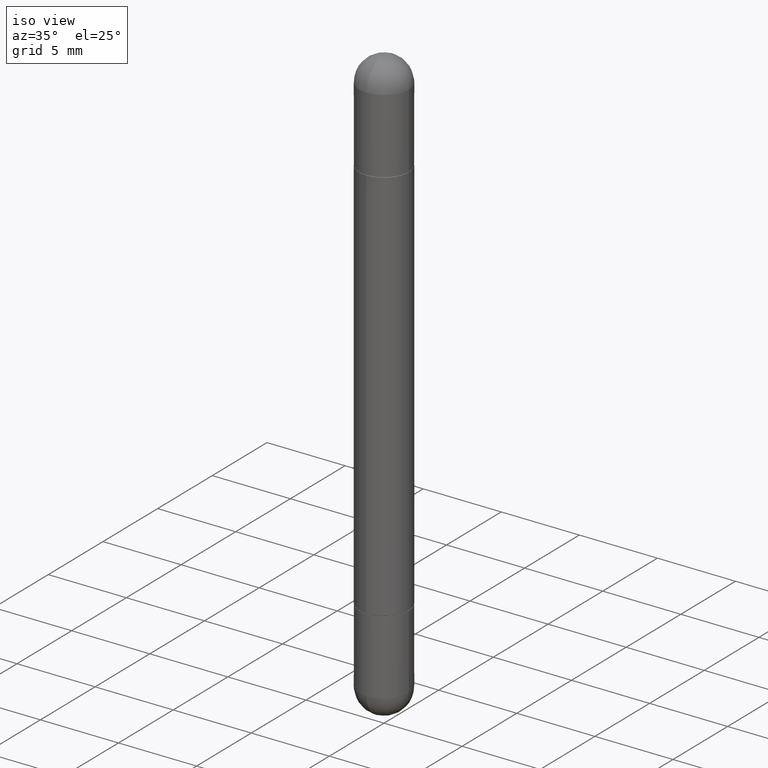
[diagram: clean part render]
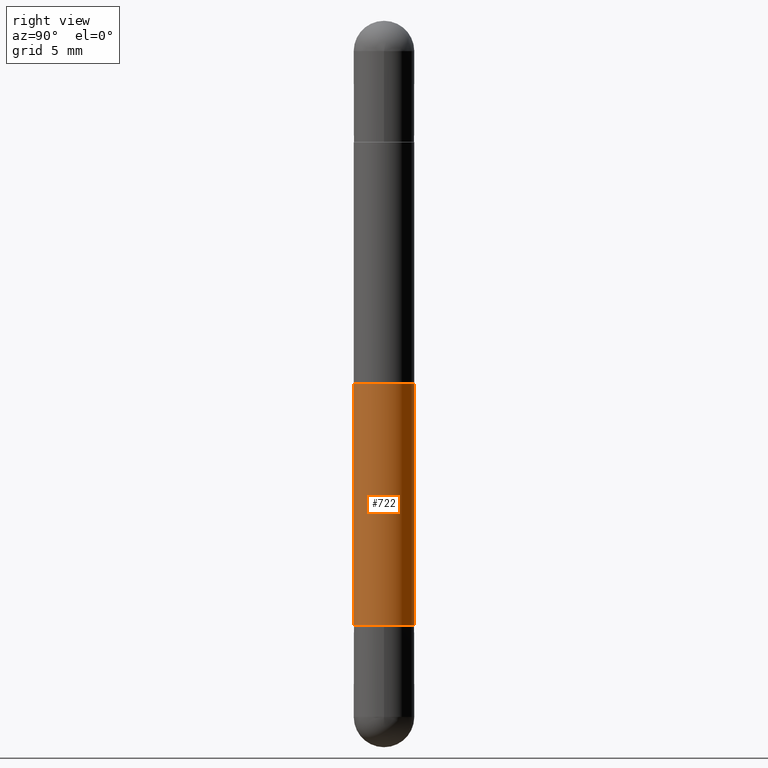
[diagram: tour spotlight — one face highlighted and labeled with its STEP entity id]
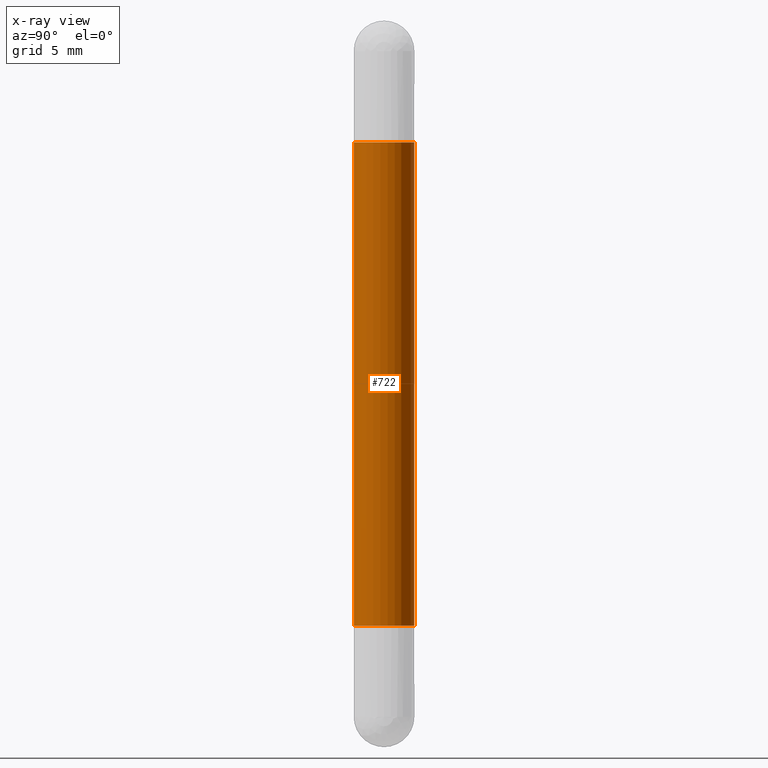
[diagram: x-ray of the same camera — body ghosted, this tour face saturated]
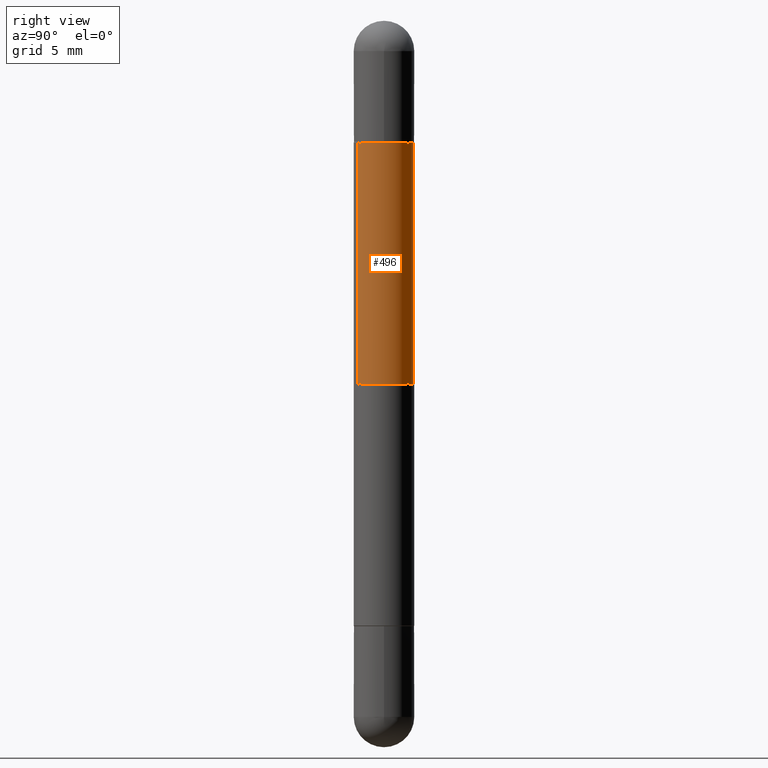
[diagram: tour spotlight — one face highlighted and labeled with its STEP entity id]
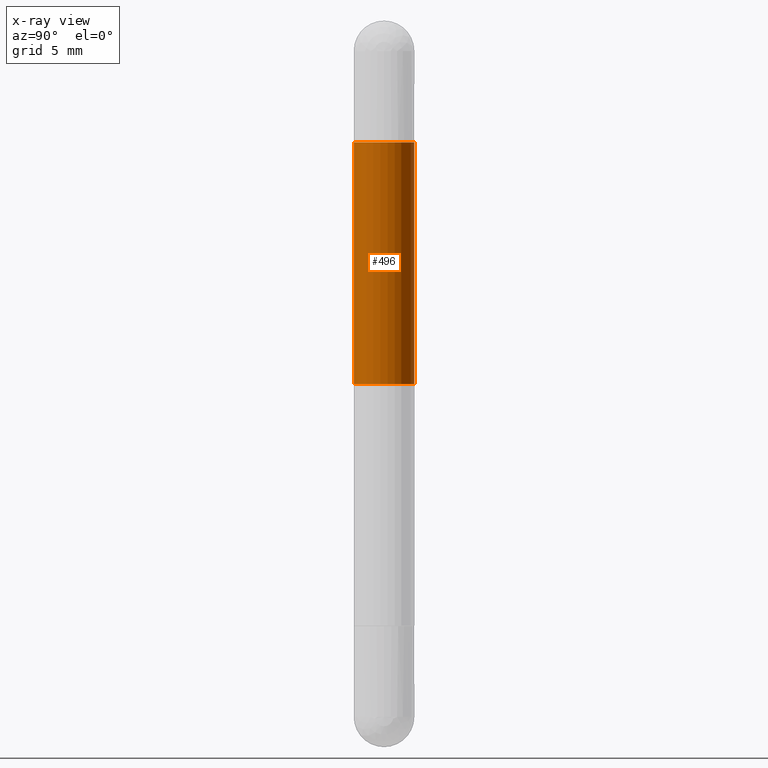
[diagram: x-ray of the same camera — body ghosted, this tour face saturated]
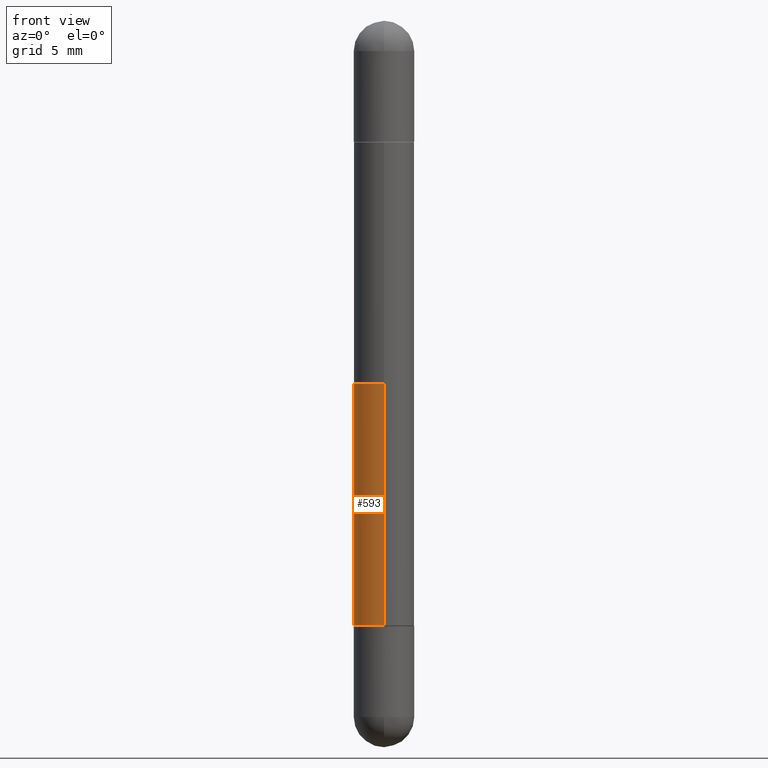
[diagram: tour spotlight — one face highlighted and labeled with its STEP entity id]
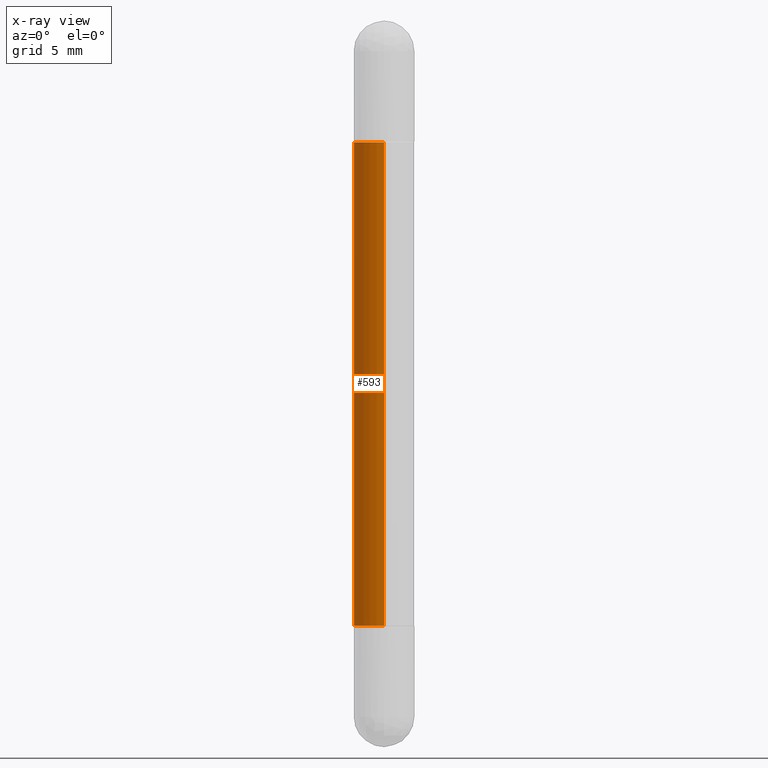
[diagram: x-ray of the same camera — body ghosted, this tour face saturated]
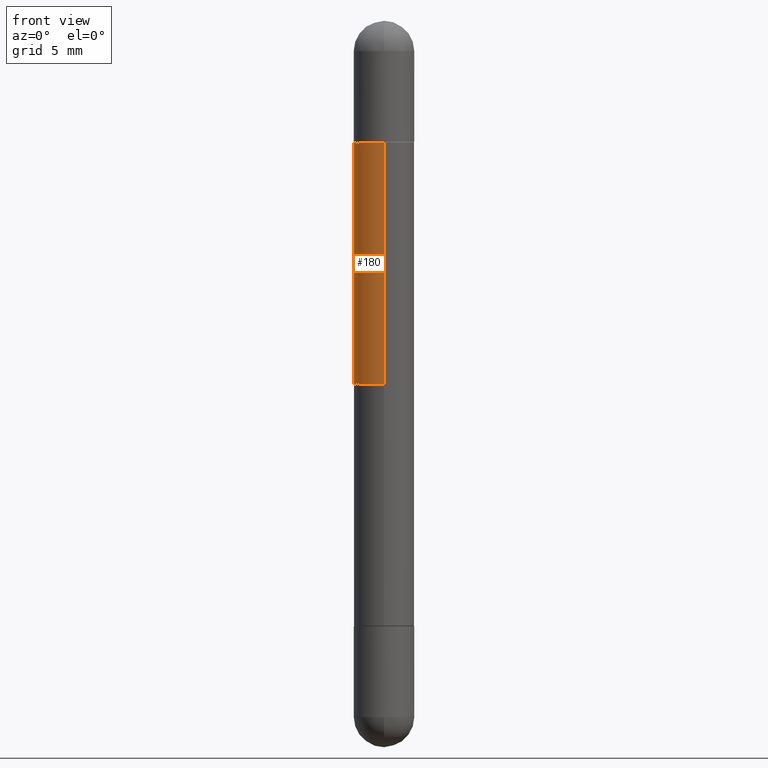
[diagram: tour spotlight — one face highlighted and labeled with its STEP entity id]
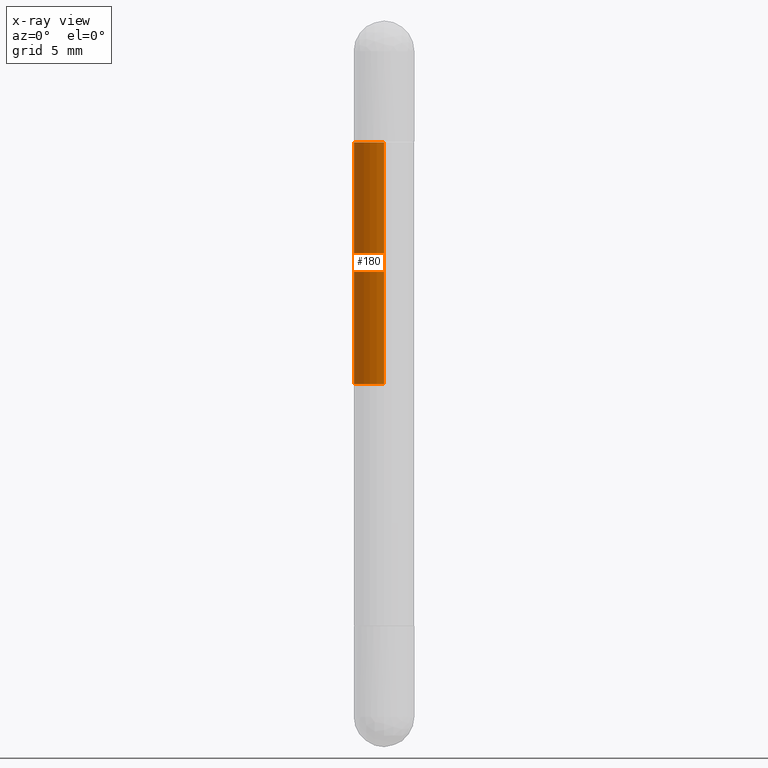
[diagram: x-ray of the same camera — body ghosted, this tour face saturated]
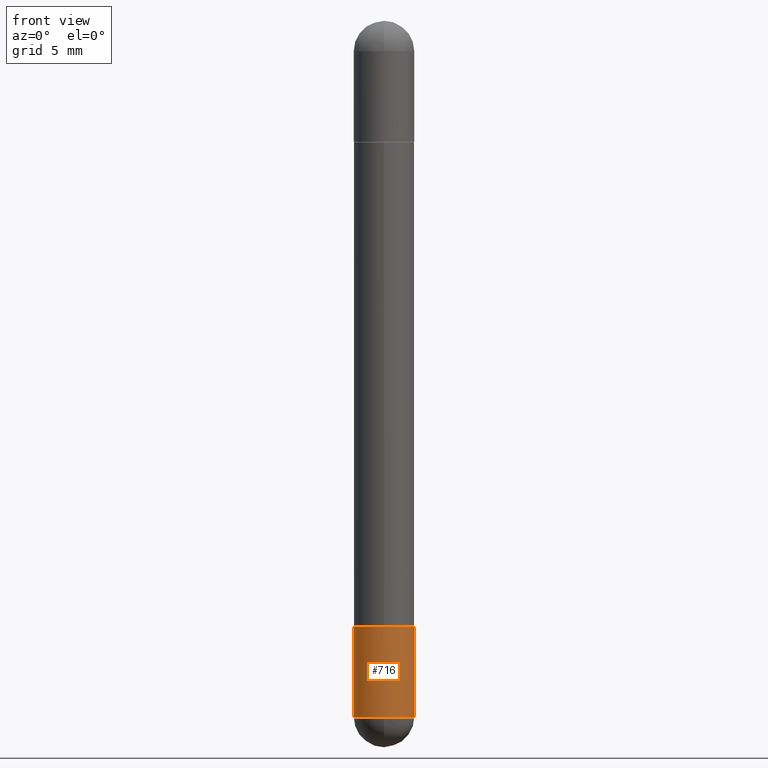
[diagram: tour spotlight — one face highlighted and labeled with its STEP entity id]
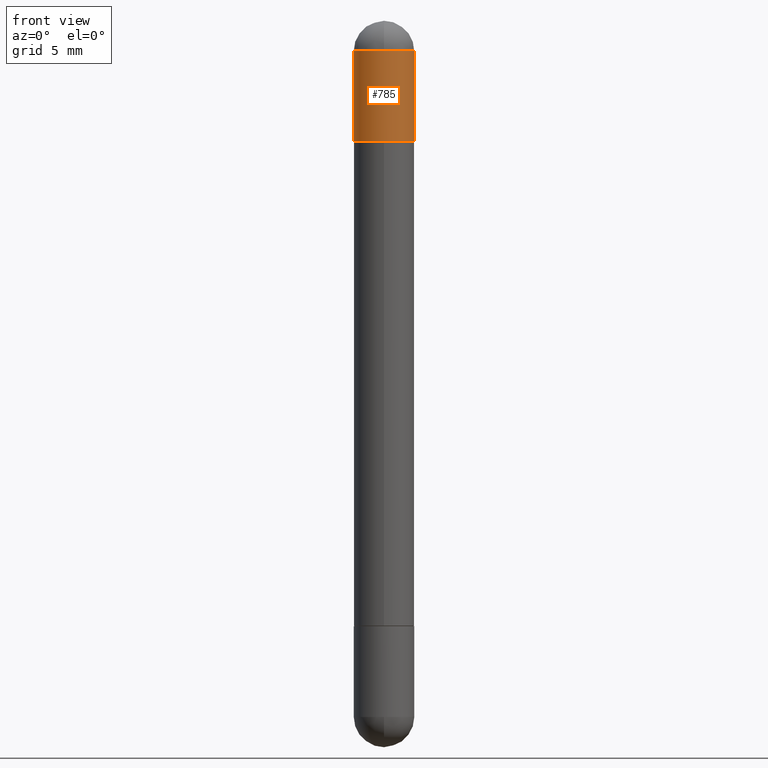
[diagram: tour spotlight — one face highlighted and labeled with its STEP entity id]
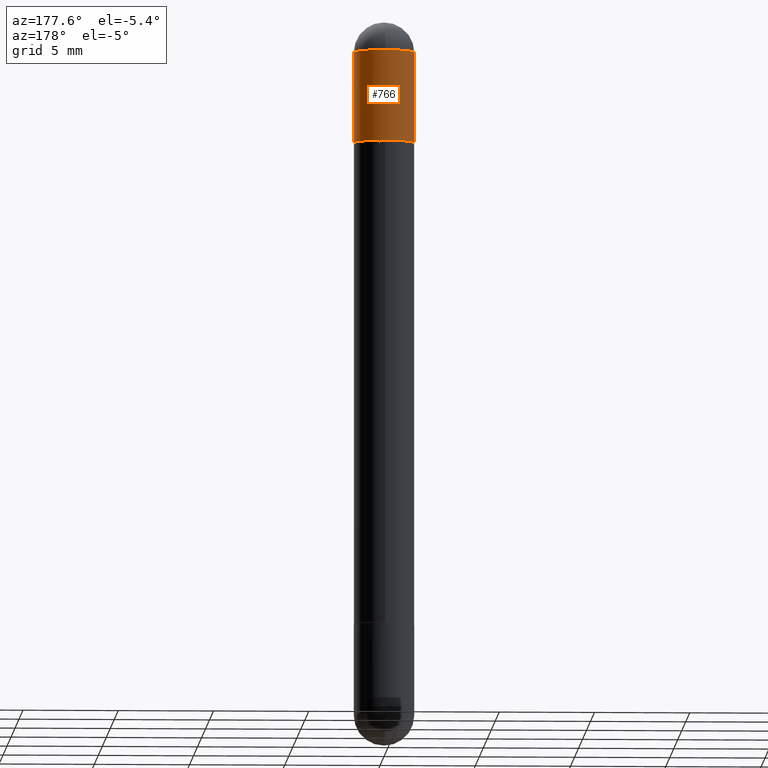
[diagram: tour spotlight — one face highlighted and labeled with its STEP entity id]
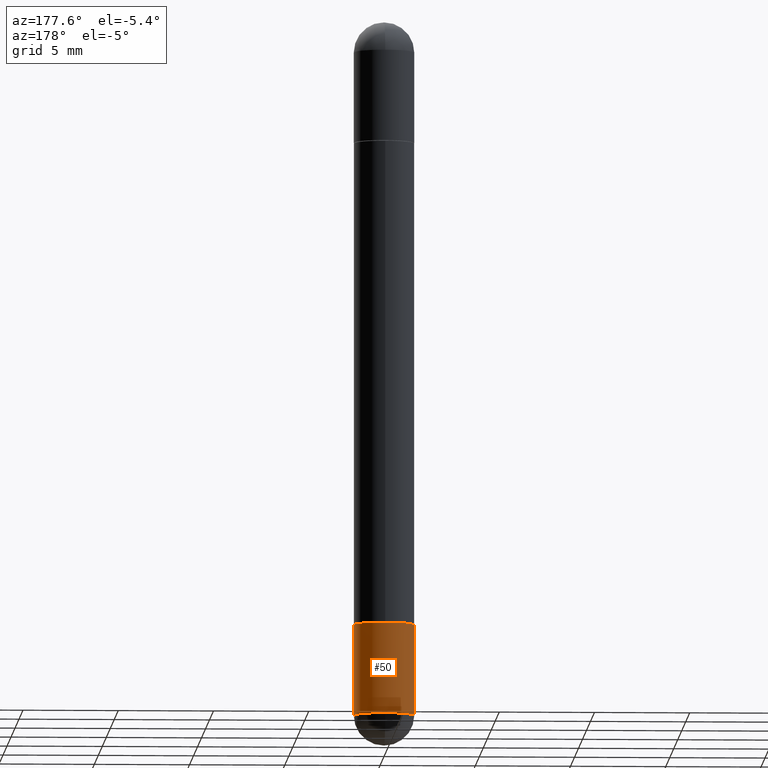
[diagram: tour spotlight — one face highlighted and labeled with its STEP entity id]
A machine part: a face-by-face anatomy tour. The part has 29 B-rep faces; the first image is the clean iso view, then the 8 largest visible faces are spotlighted one at a time (largest first), each with its STEP entity span.

Face 1 — right view, entity #722. An x-ray twin of the same camera follows (body ghosted, this face saturated) — the face is partly hidden behind the body. In plain terms, the highlighted cylindrical surface (edge-blend (fillet) strip) has radius 1.5875 mm, axis along (-0, 0, -1).
Definition (entity closure, byte-faithful):
#18 = VECTOR ( 'NONE', #166, 39.37007874015748143 ) ;
#20 = CARTESIAN_POINT ( 'NONE',  ( 0.000000000000000000, 0.000000000000000000, -1.500000000000000444 ) ) ;
#35 = ORIENTED_EDGE ( 'NONE', *, *, #443, .F. ) ;
#43 = FACE_OUTER_BOUND ( 'NONE', #485, .T. ) ;
#44 = DIRECTION ( 'NONE',  ( 2.436715212064582003E-29, -3.504016983847416079E-15, 1.000000000000000000 ) ) ;
#53 = CARTESIAN_POINT ( 'NONE',  ( 4.287811248607399511E-16, 0.06249999999999582279, -1.249000000000000332 ) ) ;
#86 = DIRECTION ( 'NONE',  ( -2.436715212064582003E-29, 3.504016983847416079E-15, 1.000000000000000000 ) ) ;
#95 = VERTEX_POINT ( 'NONE', #673 ) ;
#107 = VERTEX_POINT ( 'NONE', #784 ) ;
#109 = EDGE_CURVE ( 'NONE', #107, #377, #161, .T. ) ;
#161 = CIRCLE ( 'NONE', #266, 0.06250000000000020817 ) ;
#166 = DIRECTION ( 'NONE',  ( -2.436715212064582283E-29, 3.504016983847416079E-15, -1.000000000000000000 ) ) ;
#189 = DIRECTION ( 'NONE',  ( -6.982962677686265922E-15, -1.000000000000000000, 4.370956789862806950E-15 ) ) ;
#266 = AXIS2_PLACEMENT_3D ( 'NONE', #725, #44, #550 ) ;
#268 = AXIS2_PLACEMENT_3D ( 'NONE', #20, #447, #707 ) ;
#301 = CARTESIAN_POINT ( 'NONE',  ( 4.287811248607524250E-16, 0.06249999999999581585, -0.2510000000000002229 ) ) ;
#314 = CARTESIAN_POINT ( 'NONE',  ( 3.043457299868662493E-29, -4.376517212825422160E-15, -1.248999999999999888 ) ) ;
#332 = DIRECTION ( 'NONE',  ( -2.436715212064582283E-29, 3.504016983847416079E-15, -1.000000000000000000 ) ) ;
#374 = VERTEX_POINT ( 'NONE', #53 ) ;
#377 = VERTEX_POINT ( 'NONE', #301 ) ;
#378 = LINE ( 'NONE', #638, #18 ) ;
#409 = EDGE_CURVE ( 'NONE', #95, #374, #626, .T. ) ;
#410 = AXIS2_PLACEMENT_3D ( 'NONE', #314, #86, #189 ) ;
#420 = ORIENTED_EDGE ( 'NONE', *, *, #409, .T. ) ;
#426 = ORIENTED_EDGE ( 'NONE', *, *, #109, .F. ) ;
#443 = EDGE_CURVE ( 'NONE', #377, #374, #648, .T. ) ;
#447 = DIRECTION ( 'NONE',  ( -2.436715212064582003E-29, 3.504016983847416079E-15, -1.000000000000000000 ) ) ;
#485 = EDGE_LOOP ( 'NONE', ( #35, #426, #721, #420 ) ) ;
#511 = CARTESIAN_POINT ( 'NONE',  ( 4.287811248607214129E-16, 0.06250000000000011102, -1.500000000000000222 ) ) ;
#539 = EDGE_CURVE ( 'NONE', #107, #95, #378, .T. ) ;
#549 = CYLINDRICAL_SURFACE ( 'NONE', #268, 0.06250000000000011102 ) ;
#550 = DIRECTION ( 'NONE',  ( -6.982962677686265922E-15, -1.000000000000000000, -3.278217592397104818E-15 ) ) ;
#626 = CIRCLE ( 'NONE', #410, 0.06250000000000020817 ) ;
#638 = CARTESIAN_POINT ( 'NONE',  ( -4.364351673553924090E-16, -0.06250000000000011102, -1.500000000000000666 ) ) ;
#648 = LINE ( 'NONE', #511, #783 ) ;
#673 = CARTESIAN_POINT ( 'NONE',  ( -4.364351673553626295E-16, -0.06250000000000457967, -1.248999999999999666 ) ) ;
#707 = DIRECTION ( 'NONE',  ( -6.982962677686265922E-15, -1.000000000000000000, -4.370956789862813261E-15 ) ) ;
#721 = ORIENTED_EDGE ( 'NONE', *, *, #539, .T. ) ;
#722 = ADVANCED_FACE ( 'NONE', ( #43 ), #549, .T. ) ;
#725 = CARTESIAN_POINT ( 'NONE',  ( 3.043457299868662493E-29, -4.376517212825422160E-15, -0.2510000000000003895 ) ) ;
#783 = VECTOR ( 'NONE', #332, 39.37007874015748143 ) ;
#784 = CARTESIAN_POINT ( 'NONE',  ( -4.364351673553627281E-16, -0.06250000000000459355, -0.2510000000000006115 ) ) ;

Face 2 — right view, entity #496. An x-ray twin of the same camera follows (body ghosted, this face saturated) — the face is partly hidden behind the body. In plain terms, the highlighted cylindrical surface (edge-blend (fillet) strip) has radius 1.5875 mm, axis along (-0, 0, -1).
Definition (entity closure, byte-faithful):
#2 = VERTEX_POINT ( 'NONE', #461 ) ;
#6 = FACE_OUTER_BOUND ( 'NONE', #518, .T. ) ;
#42 = ORIENTED_EDGE ( 'NONE', *, *, #157, .F. ) ;
#63 = LINE ( 'NONE', #747, #97 ) ;
#97 = VECTOR ( 'NONE', #554, 39.37007874015748143 ) ;
#111 = ORIENTED_EDGE ( 'NONE', *, *, #250, .F. ) ;
#125 = VECTOR ( 'NONE', #737, 39.37007874015748143 ) ;
#157 = EDGE_CURVE ( 'NONE', #816, #808, #597, .T. ) ;
#208 = CARTESIAN_POINT ( 'NONE',  ( -4.364351673553924090E-16, -0.06250000000000011102, -1.500000000000000666 ) ) ;
#227 = VERTEX_POINT ( 'NONE', #693 ) ;
#235 = CARTESIAN_POINT ( 'NONE',  ( 3.043457299868662493E-29, -4.376517212825422160E-15, -0.2510000000000003895 ) ) ;
#248 = DIRECTION ( 'NONE',  ( -1.000000000000000000, 0.000000000000000000, 0.000000000000000000 ) ) ;
#250 = EDGE_CURVE ( 'NONE', #808, #2, #63, .T. ) ;
#348 = EDGE_CURVE ( 'NONE', #2, #227, #569, .T. ) ;
#351 = LINE ( 'NONE', #208, #125 ) ;
#373 = CARTESIAN_POINT ( 'NONE',  ( -4.364351673553627281E-16, -0.06250000000000459355, -0.2510000000000006115 ) ) ;
#461 = CARTESIAN_POINT ( 'NONE',  ( 4.287811248607517347E-16, 0.06249999999999747424, -0.7500000000000002220 ) ) ;
#496 = ADVANCED_FACE ( 'NONE', ( #6 ), #713, .T. ) ;
#503 = AXIS2_PLACEMENT_3D ( 'NONE', #507, #772, #588 ) ;
#507 = CARTESIAN_POINT ( 'NONE',  ( 0.000000000000000000, 0.000000000000000000, -1.500000000000000444 ) ) ;
#518 = EDGE_LOOP ( 'NONE', ( #111, #42, #562, #741 ) ) ;
#537 = DIRECTION ( 'NONE',  ( -6.982962677686265922E-15, -1.000000000000000000, -3.278217592397104818E-15 ) ) ;
#554 = DIRECTION ( 'NONE',  ( -2.436715212064582283E-29, 3.504016983847416079E-15, -1.000000000000000000 ) ) ;
#562 = ORIENTED_EDGE ( 'NONE', *, *, #695, .T. ) ;
#569 = CIRCLE ( 'NONE', #691, 0.06250000000000011102 ) ;
#588 = DIRECTION ( 'NONE',  ( -6.982962677686265922E-15, -1.000000000000000000, -4.370956789862813261E-15 ) ) ;
#597 = CIRCLE ( 'NONE', #768, 0.06250000000000020817 ) ;
#676 = DIRECTION ( 'NONE',  ( 2.436715212064582003E-29, -3.504016983847416079E-15, 1.000000000000000000 ) ) ;
#678 = CARTESIAN_POINT ( 'NONE',  ( 1.827536409048436853E-29, -2.628012737885562651E-15, -0.7500000000000002220 ) ) ;
#686 = DIRECTION ( 'NONE',  ( -0.000000000000000000, -0.000000000000000000, -1.000000000000000000 ) ) ;
#691 = AXIS2_PLACEMENT_3D ( 'NONE', #678, #686, #248 ) ;
#693 = CARTESIAN_POINT ( 'NONE',  ( -4.364351673553680036E-16, -0.06250000000000273392, -0.7500000000000002220 ) ) ;
#695 = EDGE_CURVE ( 'NONE', #816, #227, #351, .T. ) ;
#713 = CYLINDRICAL_SURFACE ( 'NONE', #503, 0.06250000000000011102 ) ;
#737 = DIRECTION ( 'NONE',  ( -2.436715212064582283E-29, 3.504016983847416079E-15, -1.000000000000000000 ) ) ;
#741 = ORIENTED_EDGE ( 'NONE', *, *, #348, .F. ) ;
#747 = CARTESIAN_POINT ( 'NONE',  ( 4.287811248607214129E-16, 0.06250000000000011102, -1.500000000000000222 ) ) ;
#765 = CARTESIAN_POINT ( 'NONE',  ( 4.287811248607524250E-16, 0.06249999999999581585, -0.2510000000000002229 ) ) ;
#768 = AXIS2_PLACEMENT_3D ( 'NONE', #235, #676, #537 ) ;
#772 = DIRECTION ( 'NONE',  ( -2.436715212064582003E-29, 3.504016983847416079E-15, -1.000000000000000000 ) ) ;
#808 = VERTEX_POINT ( 'NONE', #765 ) ;
#816 = VERTEX_POINT ( 'NONE', #373 ) ;

Face 3 — front view, entity #593. An x-ray twin of the same camera follows (body ghosted, this face saturated) — the face is partly hidden behind the body. In plain terms, the highlighted cylindrical surface (edge-blend (fillet) strip) has radius 1.5875 mm, axis along (-0, 0, -1).
Definition (entity closure, byte-faithful):
#18 = VECTOR ( 'NONE', #166, 39.37007874015748143 ) ;
#29 = CIRCLE ( 'NONE', #228, 0.06250000000000020817 ) ;
#53 = CARTESIAN_POINT ( 'NONE',  ( 4.287811248607399511E-16, 0.06249999999999582279, -1.249000000000000332 ) ) ;
#93 = CARTESIAN_POINT ( 'NONE',  ( 0.000000000000000000, 0.000000000000000000, -1.500000000000000444 ) ) ;
#95 = VERTEX_POINT ( 'NONE', #673 ) ;
#106 = DIRECTION ( 'NONE',  ( -2.436715212064582003E-29, 3.504016983847416079E-15, 1.000000000000000000 ) ) ;
#107 = VERTEX_POINT ( 'NONE', #784 ) ;
#110 = DIRECTION ( 'NONE',  ( -6.982962677686265922E-15, -1.000000000000000000, -3.278217592397104818E-15 ) ) ;
#129 = EDGE_CURVE ( 'NONE', #374, #95, #29, .T. ) ;
#166 = DIRECTION ( 'NONE',  ( -2.436715212064582283E-29, 3.504016983847416079E-15, -1.000000000000000000 ) ) ;
#203 = EDGE_CURVE ( 'NONE', #377, #107, #733, .T. ) ;
#228 = AXIS2_PLACEMENT_3D ( 'NONE', #542, #106, #607 ) ;
#279 = ORIENTED_EDGE ( 'NONE', *, *, #203, .F. ) ;
#301 = CARTESIAN_POINT ( 'NONE',  ( 4.287811248607524250E-16, 0.06249999999999581585, -0.2510000000000002229 ) ) ;
#332 = DIRECTION ( 'NONE',  ( -2.436715212064582283E-29, 3.504016983847416079E-15, -1.000000000000000000 ) ) ;
#336 = FACE_OUTER_BOUND ( 'NONE', #635, .T. ) ;
#374 = VERTEX_POINT ( 'NONE', #53 ) ;
#377 = VERTEX_POINT ( 'NONE', #301 ) ;
#378 = LINE ( 'NONE', #638, #18 ) ;
#381 = AXIS2_PLACEMENT_3D ( 'NONE', #93, #605, #730 ) ;
#393 = AXIS2_PLACEMENT_3D ( 'NONE', #732, #398, #110 ) ;
#398 = DIRECTION ( 'NONE',  ( 2.436715212064582003E-29, -3.504016983847416079E-15, 1.000000000000000000 ) ) ;
#415 = CYLINDRICAL_SURFACE ( 'NONE', #381, 0.06250000000000011102 ) ;
#443 = EDGE_CURVE ( 'NONE', #377, #374, #648, .T. ) ;
#511 = CARTESIAN_POINT ( 'NONE',  ( 4.287811248607214129E-16, 0.06250000000000011102, -1.500000000000000222 ) ) ;
#539 = EDGE_CURVE ( 'NONE', #107, #95, #378, .T. ) ;
#542 = CARTESIAN_POINT ( 'NONE',  ( 3.043457299868662493E-29, -4.376517212825422160E-15, -1.248999999999999888 ) ) ;
#556 = ORIENTED_EDGE ( 'NONE', *, *, #539, .F. ) ;
#593 = ADVANCED_FACE ( 'NONE', ( #336 ), #415, .T. ) ;
#605 = DIRECTION ( 'NONE',  ( -2.436715212064582003E-29, 3.504016983847416079E-15, -1.000000000000000000 ) ) ;
#607 = DIRECTION ( 'NONE',  ( -6.982962677686265922E-15, -1.000000000000000000, 4.370956789862806950E-15 ) ) ;
#635 = EDGE_LOOP ( 'NONE', ( #279, #814, #702, #556 ) ) ;
#638 = CARTESIAN_POINT ( 'NONE',  ( -4.364351673553924090E-16, -0.06250000000000011102, -1.500000000000000666 ) ) ;
#648 = LINE ( 'NONE', #511, #783 ) ;
#673 = CARTESIAN_POINT ( 'NONE',  ( -4.364351673553626295E-16, -0.06250000000000457967, -1.248999999999999666 ) ) ;
#702 = ORIENTED_EDGE ( 'NONE', *, *, #129, .T. ) ;
#730 = DIRECTION ( 'NONE',  ( -6.982962677686265922E-15, -1.000000000000000000, -4.370956789862813261E-15 ) ) ;
#732 = CARTESIAN_POINT ( 'NONE',  ( 3.043457299868662493E-29, -4.376517212825422160E-15, -0.2510000000000003895 ) ) ;
#733 = CIRCLE ( 'NONE', #393, 0.06250000000000020817 ) ;
#783 = VECTOR ( 'NONE', #332, 39.37007874015748143 ) ;
#784 = CARTESIAN_POINT ( 'NONE',  ( -4.364351673553627281E-16, -0.06250000000000459355, -0.2510000000000006115 ) ) ;
#814 = ORIENTED_EDGE ( 'NONE', *, *, #443, .T. ) ;

Face 4 — front view, entity #180. An x-ray twin of the same camera follows (body ghosted, this face saturated) — the face is partly hidden behind the body. In plain terms, the highlighted cylindrical surface (edge-blend (fillet) strip) has radius 1.5875 mm, axis along (-0, 0, -1).
Definition (entity closure, byte-faithful):
#2 = VERTEX_POINT ( 'NONE', #461 ) ;
#63 = LINE ( 'NONE', #747, #97 ) ;
#70 = EDGE_CURVE ( 'NONE', #808, #816, #316, .T. ) ;
#85 = CIRCLE ( 'NONE', #114, 0.06250000000000011102 ) ;
#97 = VECTOR ( 'NONE', #554, 39.37007874015748143 ) ;
#114 = AXIS2_PLACEMENT_3D ( 'NONE', #522, #777, #479 ) ;
#125 = VECTOR ( 'NONE', #737, 39.37007874015748143 ) ;
#160 = ORIENTED_EDGE ( 'NONE', *, *, #70, .F. ) ;
#180 = ADVANCED_FACE ( 'NONE', ( #484 ), #603, .T. ) ;
#208 = CARTESIAN_POINT ( 'NONE',  ( -4.364351673553924090E-16, -0.06250000000000011102, -1.500000000000000666 ) ) ;
#227 = VERTEX_POINT ( 'NONE', #693 ) ;
#232 = DIRECTION ( 'NONE',  ( -2.436715212064582003E-29, 3.504016983847416079E-15, -1.000000000000000000 ) ) ;
#250 = EDGE_CURVE ( 'NONE', #808, #2, #63, .T. ) ;
#280 = AXIS2_PLACEMENT_3D ( 'NONE', #650, #528, #612 ) ;
#307 = ORIENTED_EDGE ( 'NONE', *, *, #250, .T. ) ;
#316 = CIRCLE ( 'NONE', #280, 0.06250000000000020817 ) ;
#334 = EDGE_LOOP ( 'NONE', ( #160, #307, #674, #618 ) ) ;
#351 = LINE ( 'NONE', #208, #125 ) ;
#373 = CARTESIAN_POINT ( 'NONE',  ( -4.364351673553627281E-16, -0.06250000000000459355, -0.2510000000000006115 ) ) ;
#461 = CARTESIAN_POINT ( 'NONE',  ( 4.287811248607517347E-16, 0.06249999999999747424, -0.7500000000000002220 ) ) ;
#467 = CARTESIAN_POINT ( 'NONE',  ( 0.000000000000000000, 0.000000000000000000, -1.500000000000000444 ) ) ;
#479 = DIRECTION ( 'NONE',  ( -1.000000000000000000, 0.000000000000000000, 0.000000000000000000 ) ) ;
#480 = DIRECTION ( 'NONE',  ( -6.982962677686265922E-15, -1.000000000000000000, -4.370956789862813261E-15 ) ) ;
#484 = FACE_OUTER_BOUND ( 'NONE', #334, .T. ) ;
#522 = CARTESIAN_POINT ( 'NONE',  ( 1.827536409048436853E-29, -2.628012737885562651E-15, -0.7500000000000002220 ) ) ;
#528 = DIRECTION ( 'NONE',  ( 2.436715212064582003E-29, -3.504016983847416079E-15, 1.000000000000000000 ) ) ;
#554 = DIRECTION ( 'NONE',  ( -2.436715212064582283E-29, 3.504016983847416079E-15, -1.000000000000000000 ) ) ;
#603 = CYLINDRICAL_SURFACE ( 'NONE', #800, 0.06250000000000011102 ) ;
#612 = DIRECTION ( 'NONE',  ( -6.982962677686265922E-15, -1.000000000000000000, -3.278217592397104818E-15 ) ) ;
#618 = ORIENTED_EDGE ( 'NONE', *, *, #695, .F. ) ;
#650 = CARTESIAN_POINT ( 'NONE',  ( 3.043457299868662493E-29, -4.376517212825422160E-15, -0.2510000000000003895 ) ) ;
#674 = ORIENTED_EDGE ( 'NONE', *, *, #685, .F. ) ;
#685 = EDGE_CURVE ( 'NONE', #227, #2, #85, .T. ) ;
#693 = CARTESIAN_POINT ( 'NONE',  ( -4.364351673553680036E-16, -0.06250000000000273392, -0.7500000000000002220 ) ) ;
#695 = EDGE_CURVE ( 'NONE', #816, #227, #351, .T. ) ;
#737 = DIRECTION ( 'NONE',  ( -2.436715212064582283E-29, 3.504016983847416079E-15, -1.000000000000000000 ) ) ;
#747 = CARTESIAN_POINT ( 'NONE',  ( 4.287811248607214129E-16, 0.06250000000000011102, -1.500000000000000222 ) ) ;
#765 = CARTESIAN_POINT ( 'NONE',  ( 4.287811248607524250E-16, 0.06249999999999581585, -0.2510000000000002229 ) ) ;
#777 = DIRECTION ( 'NONE',  ( -0.000000000000000000, -0.000000000000000000, -1.000000000000000000 ) ) ;
#800 = AXIS2_PLACEMENT_3D ( 'NONE', #467, #232, #480 ) ;
#808 = VERTEX_POINT ( 'NONE', #765 ) ;
#816 = VERTEX_POINT ( 'NONE', #373 ) ;

Face 5 — front view, entity #716. In plain terms, the highlighted cylindrical surface (edge-blend (fillet) strip) has radius 1.5875 mm, axis along (-0, 0, 1).
Definition (entity closure, byte-faithful):
#10 = CARTESIAN_POINT ( 'NONE',  ( 3.056836007731421306E-29, -4.364351673553932471E-15, -1.250000000000000000 ) ) ;
#49 = AXIS2_PLACEMENT_3D ( 'NONE', #201, #453, #78 ) ;
#67 = CARTESIAN_POINT ( 'NONE',  ( -0.06250000000000001388, 4.440892098500627148E-16, -3.074334431409317165E-30 ) ) ;
#71 = CIRCLE ( 'NONE', #358, 0.06250000000000001388 ) ;
#78 = DIRECTION ( 'NONE',  ( 1.000000000000000000, -6.982962677686261189E-15, 0.000000000000000000 ) ) ;
#103 = VERTEX_POINT ( 'NONE', #401 ) ;
#118 = ORIENTED_EDGE ( 'NONE', *, *, #240, .T. ) ;
#163 = AXIS2_PLACEMENT_3D ( 'NONE', #10, #651, #255 ) ;
#183 = CARTESIAN_POINT ( 'NONE',  ( 0.06250000000000001388, -4.364351673553918173E-16, 3.047610484872460571E-30 ) ) ;
#201 = CARTESIAN_POINT ( 'NONE',  ( 3.515361408891134418E-29, -5.019004424587023131E-15, -1.437500000000000222 ) ) ;
#234 = DIRECTION ( 'NONE',  ( -2.445468806185136597E-29, 3.491481338843145583E-15, 1.000000000000000000 ) ) ;
#236 = EDGE_LOOP ( 'NONE', ( #655, #487, #513, #118, #417 ) ) ;
#240 = EDGE_CURVE ( 'NONE', #103, #244, #752, .T. ) ;
#241 = CARTESIAN_POINT ( 'NONE',  ( 0.06250000000000001388, -4.800786840909324141E-15, -1.250000000000000000 ) ) ;
#244 = VERTEX_POINT ( 'NONE', #241 ) ;
#255 = DIRECTION ( 'NONE',  ( 1.000000000000000000, -6.982962677686269077E-15, 0.000000000000000000 ) ) ;
#270 = LINE ( 'NONE', #67, #331 ) ;
#275 = CARTESIAN_POINT ( 'NONE',  ( -0.06250000000000001388, -4.247588839220414790E-15, -1.250000000000000000 ) ) ;
#282 = DIRECTION ( 'NONE',  ( 1.000000000000000000, -6.982962677686261189E-15, 0.000000000000000000 ) ) ;
#294 = CYLINDRICAL_SURFACE ( 'NONE', #585, 0.06250000000000001388 ) ;
#331 = VECTOR ( 'NONE', #631, 39.37007874015748143 ) ;
#358 = AXIS2_PLACEMENT_3D ( 'NONE', #470, #792, #282 ) ;
#366 = DIRECTION ( 'NONE',  ( -2.445468806185136877E-29, 3.491481338843145188E-15, 1.000000000000000000 ) ) ;
#401 = CARTESIAN_POINT ( 'NONE',  ( 0.06250000000000001388, -5.128113216425869076E-15, -1.437500000000000222 ) ) ;
#403 = EDGE_CURVE ( 'NONE', #543, #244, #654, .T. ) ;
#417 = ORIENTED_EDGE ( 'NONE', *, *, #403, .F. ) ;
#433 = VECTOR ( 'NONE', #366, 39.37007874015748143 ) ;
#453 = DIRECTION ( 'NONE',  ( -2.445468806185136597E-29, 3.491481338843145583E-15, 1.000000000000000000 ) ) ;
#470 = CARTESIAN_POINT ( 'NONE',  ( 3.515361408891134418E-29, -5.019004424587023131E-15, -1.437500000000000222 ) ) ;
#483 = DIRECTION ( 'NONE',  ( 1.000000000000000000, -6.982962677686267499E-15, 4.876176775795935793E-29 ) ) ;
#487 = ORIENTED_EDGE ( 'NONE', *, *, #568, .T. ) ;
#513 = ORIENTED_EDGE ( 'NONE', *, *, #795, .T. ) ;
#543 = VERTEX_POINT ( 'NONE', #275 ) ;
#551 = VERTEX_POINT ( 'NONE', #788 ) ;
#568 = EDGE_CURVE ( 'NONE', #551, #739, #71, .T. ) ;
#585 = AXIS2_PLACEMENT_3D ( 'NONE', #803, #234, #483 ) ;
#631 = DIRECTION ( 'NONE',  ( -2.445468806185136877E-29, 3.491481338843145188E-15, 1.000000000000000000 ) ) ;
#644 = CARTESIAN_POINT ( 'NONE',  ( -4.440892098500298784E-16, -0.06250000000000537070, -1.437500000000000000 ) ) ;
#651 = DIRECTION ( 'NONE',  ( -2.445468806185136597E-29, 3.491481338843145583E-15, 1.000000000000000000 ) ) ;
#654 = CIRCLE ( 'NONE', #163, 0.06250000000000001388 ) ;
#655 = ORIENTED_EDGE ( 'NONE', *, *, #796, .F. ) ;
#716 = ADVANCED_FACE ( 'NONE', ( #723 ), #294, .T. ) ;
#723 = FACE_OUTER_BOUND ( 'NONE', #236, .T. ) ;
#739 = VERTEX_POINT ( 'NONE', #644 ) ;
#752 = LINE ( 'NONE', #183, #433 ) ;
#757 = CIRCLE ( 'NONE', #49, 0.06250000000000001388 ) ;
#788 = CARTESIAN_POINT ( 'NONE',  ( -0.06250000000000001388, -4.247588839220414790E-15, -1.437500000000000222 ) ) ;
#792 = DIRECTION ( 'NONE',  ( -2.445468806185136597E-29, 3.491481338843145583E-15, 1.000000000000000000 ) ) ;
#795 = EDGE_CURVE ( 'NONE', #739, #103, #757, .T. ) ;
#796 = EDGE_CURVE ( 'NONE', #551, #543, #270, .T. ) ;
#803 = CARTESIAN_POINT ( 'NONE',  ( 0.000000000000000000, 0.000000000000000000, 0.000000000000000000 ) ) ;

Face 6 — front view, entity #785. In plain terms, the highlighted cylindrical surface (edge-blend (fillet) strip) has radius 1.5875 mm, axis along (-0, 0, -1).
Definition (entity closure, byte-faithful):
#30 = LINE ( 'NONE', #594, #72 ) ;
#37 = CARTESIAN_POINT ( 'NONE',  ( 0.06250000000000001388, -4.800786840909324141E-15, -0.2500000000000003331 ) ) ;
#38 = CARTESIAN_POINT ( 'NONE',  ( 3.056836007731421306E-29, -4.364351673553932471E-15, -0.2500000000000003331 ) ) ;
#41 = DIRECTION ( 'NONE',  ( 1.000000000000000000, -6.982962677686269077E-15, 0.000000000000000000 ) ) ;
#72 = VECTOR ( 'NONE', #339, 39.37007874015748143 ) ;
#94 = DIRECTION ( 'NONE',  ( 1.000000000000000000, -6.982962677686261189E-15, 0.000000000000000000 ) ) ;
#131 = EDGE_CURVE ( 'NONE', #202, #679, #330, .T. ) ;
#140 = EDGE_CURVE ( 'NONE', #371, #679, #291, .T. ) ;
#186 = CIRCLE ( 'NONE', #637, 0.06250000000000001388 ) ;
#188 = EDGE_CURVE ( 'NONE', #271, #371, #744, .T. ) ;
#202 = VERTEX_POINT ( 'NONE', #341 ) ;
#211 = VECTOR ( 'NONE', #668, 39.37007874015748143 ) ;
#256 = DIRECTION ( 'NONE',  ( -2.445468806185136597E-29, 3.491481338843145583E-15, -1.000000000000000000 ) ) ;
#257 = ORIENTED_EDGE ( 'NONE', *, *, #560, .T. ) ;
#271 = VERTEX_POINT ( 'NONE', #743 ) ;
#291 = LINE ( 'NONE', #799, #211 ) ;
#328 = CARTESIAN_POINT ( 'NONE',  ( 0.000000000000000000, 0.000000000000000000, -1.500000000000000444 ) ) ;
#330 = CIRCLE ( 'NONE', #380, 0.06250000000000001388 ) ;
#339 = DIRECTION ( 'NONE',  ( -2.445468806185136877E-29, 3.491481338843145188E-15, -1.000000000000000000 ) ) ;
#341 = CARTESIAN_POINT ( 'NONE',  ( -0.06250000000000001388, -4.262896924209756684E-15, -0.2500000000000003331 ) ) ;
#346 = CARTESIAN_POINT ( 'NONE',  ( 3.515361408891134418E-29, -5.019004424587023131E-15, -0.06250000000000022204 ) ) ;
#364 = CARTESIAN_POINT ( 'NONE',  ( -0.06250000000000001388, -4.262896924209757473E-15, -0.06250000000000022204 ) ) ;
#365 = VERTEX_POINT ( 'NONE', #364 ) ;
#371 = VERTEX_POINT ( 'NONE', #620 ) ;
#380 = AXIS2_PLACEMENT_3D ( 'NONE', #38, #592, #41 ) ;
#392 = EDGE_LOOP ( 'NONE', ( #604, #257, #812, #428, #567 ) ) ;
#408 = AXIS2_PLACEMENT_3D ( 'NONE', #475, #664, #94 ) ;
#428 = ORIENTED_EDGE ( 'NONE', *, *, #140, .F. ) ;
#439 = DIRECTION ( 'NONE',  ( 1.000000000000000000, -6.982962677686267499E-15, 0.000000000000000000 ) ) ;
#475 = CARTESIAN_POINT ( 'NONE',  ( 3.515361408891134418E-29, -5.019004424587023131E-15, -0.06250000000000022204 ) ) ;
#508 = CYLINDRICAL_SURFACE ( 'NONE', #736, 0.06250000000000001388 ) ;
#560 = EDGE_CURVE ( 'NONE', #365, #202, #30, .T. ) ;
#567 = ORIENTED_EDGE ( 'NONE', *, *, #188, .F. ) ;
#592 = DIRECTION ( 'NONE',  ( 2.445468806185136597E-29, -3.491481338843145583E-15, 1.000000000000000000 ) ) ;
#594 = CARTESIAN_POINT ( 'NONE',  ( -0.06250000000000001388, 4.287811248607208706E-16, -1.500000000000000444 ) ) ;
#604 = ORIENTED_EDGE ( 'NONE', *, *, #660, .F. ) ;
#620 = CARTESIAN_POINT ( 'NONE',  ( 0.06250000000000001388, -5.128113216425869076E-15, -0.06250000000000022204 ) ) ;
#637 = AXIS2_PLACEMENT_3D ( 'NONE', #346, #781, #671 ) ;
#660 = EDGE_CURVE ( 'NONE', #365, #271, #186, .T. ) ;
#664 = DIRECTION ( 'NONE',  ( 2.445468806185136597E-29, -3.491481338843145583E-15, 1.000000000000000000 ) ) ;
#668 = DIRECTION ( 'NONE',  ( -2.445468806185136877E-29, 3.491481338843145188E-15, -1.000000000000000000 ) ) ;
#671 = DIRECTION ( 'NONE',  ( 1.000000000000000000, -6.982962677686261189E-15, 0.000000000000000000 ) ) ;
#679 = VERTEX_POINT ( 'NONE', #37 ) ;
#694 = FACE_OUTER_BOUND ( 'NONE', #392, .T. ) ;
#736 = AXIS2_PLACEMENT_3D ( 'NONE', #328, #256, #439 ) ;
#743 = CARTESIAN_POINT ( 'NONE',  ( -4.287811248606879849E-16, -0.06250000000000537070, -0.06250000000000044409 ) ) ;
#744 = CIRCLE ( 'NONE', #408, 0.06250000000000001388 ) ;
#781 = DIRECTION ( 'NONE',  ( 2.445468806185136597E-29, -3.491481338843145583E-15, 1.000000000000000000 ) ) ;
#785 = ADVANCED_FACE ( 'NONE', ( #694 ), #508, .T. ) ;
#799 = CARTESIAN_POINT ( 'NONE',  ( 0.06250000000000001388, -4.364351673553918173E-16, -1.500000000000000444 ) ) ;
#812 = ORIENTED_EDGE ( 'NONE', *, *, #131, .T. ) ;

Face 7 — auxiliary view, entity #766. In plain terms, the highlighted cylindrical surface (edge-blend (fillet) strip) has radius 1.5875 mm, axis along (-0, 0, -1).
Definition (entity closure, byte-faithful):
#15 = DIRECTION ( 'NONE',  ( -2.445468806185136597E-29, 3.491481338843145583E-15, -1.000000000000000000 ) ) ;
#19 = CARTESIAN_POINT ( 'NONE',  ( 3.515361408891134418E-29, -5.019004424587023131E-15, -0.06250000000000022204 ) ) ;
#30 = LINE ( 'NONE', #594, #72 ) ;
#37 = CARTESIAN_POINT ( 'NONE',  ( 0.06250000000000001388, -4.800786840909324141E-15, -0.2500000000000003331 ) ) ;
#40 = CARTESIAN_POINT ( 'NONE',  ( 4.364351673554259849E-16, 0.06249999999999485828, -0.06250000000000000000 ) ) ;
#72 = VECTOR ( 'NONE', #339, 39.37007874015748143 ) ;
#121 = EDGE_CURVE ( 'NONE', #679, #202, #755, .T. ) ;
#140 = EDGE_CURVE ( 'NONE', #371, #679, #291, .T. ) ;
#147 = CIRCLE ( 'NONE', #449, 0.06250000000000001388 ) ;
#152 = DIRECTION ( 'NONE',  ( 1.000000000000000000, -6.982962677686269077E-15, 0.000000000000000000 ) ) ;
#156 = DIRECTION ( 'NONE',  ( 1.000000000000000000, -6.982962677686261189E-15, 0.000000000000000000 ) ) ;
#190 = CYLINDRICAL_SURFACE ( 'NONE', #627, 0.06250000000000001388 ) ;
#194 = ORIENTED_EDGE ( 'NONE', *, *, #121, .T. ) ;
#195 = DIRECTION ( 'NONE',  ( 1.000000000000000000, -6.982962677686261189E-15, 0.000000000000000000 ) ) ;
#202 = VERTEX_POINT ( 'NONE', #341 ) ;
#211 = VECTOR ( 'NONE', #668, 39.37007874015748143 ) ;
#217 = ORIENTED_EDGE ( 'NONE', *, *, #573, .F. ) ;
#233 = ORIENTED_EDGE ( 'NONE', *, *, #472, .F. ) ;
#269 = DIRECTION ( 'NONE',  ( 2.445468806185136597E-29, -3.491481338843145583E-15, 1.000000000000000000 ) ) ;
#291 = LINE ( 'NONE', #799, #211 ) ;
#313 = ORIENTED_EDGE ( 'NONE', *, *, #140, .T. ) ;
#339 = DIRECTION ( 'NONE',  ( -2.445468806185136877E-29, 3.491481338843145188E-15, -1.000000000000000000 ) ) ;
#341 = CARTESIAN_POINT ( 'NONE',  ( -0.06250000000000001388, -4.262896924209756684E-15, -0.2500000000000003331 ) ) ;
#364 = CARTESIAN_POINT ( 'NONE',  ( -0.06250000000000001388, -4.262896924209757473E-15, -0.06250000000000022204 ) ) ;
#365 = VERTEX_POINT ( 'NONE', #364 ) ;
#371 = VERTEX_POINT ( 'NONE', #620 ) ;
#406 = DIRECTION ( 'NONE',  ( 2.445468806185136597E-29, -3.491481338843145583E-15, 1.000000000000000000 ) ) ;
#449 = AXIS2_PLACEMENT_3D ( 'NONE', #798, #534, #156 ) ;
#472 = EDGE_CURVE ( 'NONE', #564, #365, #681, .T. ) ;
#502 = FACE_OUTER_BOUND ( 'NONE', #600, .T. ) ;
#512 = CARTESIAN_POINT ( 'NONE',  ( 0.000000000000000000, 0.000000000000000000, -1.500000000000000444 ) ) ;
#529 = AXIS2_PLACEMENT_3D ( 'NONE', #738, #406, #152 ) ;
#534 = DIRECTION ( 'NONE',  ( 2.445468806185136597E-29, -3.491481338843145583E-15, 1.000000000000000000 ) ) ;
#560 = EDGE_CURVE ( 'NONE', #365, #202, #30, .T. ) ;
#564 = VERTEX_POINT ( 'NONE', #40 ) ;
#573 = EDGE_CURVE ( 'NONE', #371, #564, #147, .T. ) ;
#594 = CARTESIAN_POINT ( 'NONE',  ( -0.06250000000000001388, 4.287811248607208706E-16, -1.500000000000000444 ) ) ;
#600 = EDGE_LOOP ( 'NONE', ( #735, #233, #217, #313, #194 ) ) ;
#620 = CARTESIAN_POINT ( 'NONE',  ( 0.06250000000000001388, -5.128113216425869076E-15, -0.06250000000000022204 ) ) ;
#627 = AXIS2_PLACEMENT_3D ( 'NONE', #512, #15, #701 ) ;
#668 = DIRECTION ( 'NONE',  ( -2.445468806185136877E-29, 3.491481338843145188E-15, -1.000000000000000000 ) ) ;
#679 = VERTEX_POINT ( 'NONE', #37 ) ;
#681 = CIRCLE ( 'NONE', #720, 0.06250000000000001388 ) ;
#701 = DIRECTION ( 'NONE',  ( 1.000000000000000000, -6.982962677686267499E-15, 0.000000000000000000 ) ) ;
#720 = AXIS2_PLACEMENT_3D ( 'NONE', #19, #269, #195 ) ;
#735 = ORIENTED_EDGE ( 'NONE', *, *, #560, .F. ) ;
#738 = CARTESIAN_POINT ( 'NONE',  ( 3.056836007731421306E-29, -4.364351673553932471E-15, -0.2500000000000003331 ) ) ;
#755 = CIRCLE ( 'NONE', #529, 0.06250000000000001388 ) ;
#766 = ADVANCED_FACE ( 'NONE', ( #502 ), #190, .T. ) ;
#798 = CARTESIAN_POINT ( 'NONE',  ( 3.515361408891134418E-29, -5.019004424587023131E-15, -0.06250000000000022204 ) ) ;
#799 = CARTESIAN_POINT ( 'NONE',  ( 0.06250000000000001388, -4.364351673553918173E-16, -1.500000000000000444 ) ) ;

Face 8 — auxiliary view, entity #50. In plain terms, the highlighted cylindrical surface (edge-blend (fillet) strip) has radius 1.5875 mm, axis along (-0, 0, 1).
Definition (entity closure, byte-faithful):
#16 = DIRECTION ( 'NONE',  ( -2.445468806185136597E-29, 3.491481338843145583E-15, 1.000000000000000000 ) ) ;
#25 = ORIENTED_EDGE ( 'NONE', *, *, #482, .T. ) ;
#27 = DIRECTION ( 'NONE',  ( -2.445468806185136597E-29, 3.491481338843145583E-15, 1.000000000000000000 ) ) ;
#50 = ADVANCED_FACE ( 'NONE', ( #709 ), #387, .T. ) ;
#57 = AXIS2_PLACEMENT_3D ( 'NONE', #246, #623, #360 ) ;
#62 = ORIENTED_EDGE ( 'NONE', *, *, #240, .F. ) ;
#67 = CARTESIAN_POINT ( 'NONE',  ( -0.06250000000000001388, 4.440892098500627148E-16, -3.074334431409317165E-30 ) ) ;
#69 = CIRCLE ( 'NONE', #198, 0.06250000000000001388 ) ;
#75 = EDGE_CURVE ( 'NONE', #308, #551, #69, .T. ) ;
#102 = CARTESIAN_POINT ( 'NONE',  ( 3.515361408891134418E-29, -5.019004424587023131E-15, -1.437500000000000222 ) ) ;
#103 = VERTEX_POINT ( 'NONE', #401 ) ;
#132 = DIRECTION ( 'NONE',  ( 1.000000000000000000, -6.982962677686261189E-15, 0.000000000000000000 ) ) ;
#167 = DIRECTION ( 'NONE',  ( 1.000000000000000000, -6.982962677686261189E-15, 0.000000000000000000 ) ) ;
#168 = EDGE_LOOP ( 'NONE', ( #729, #665, #207, #62, #25 ) ) ;
#183 = CARTESIAN_POINT ( 'NONE',  ( 0.06250000000000001388, -4.364351673553918173E-16, 3.047610484872460571E-30 ) ) ;
#198 = AXIS2_PLACEMENT_3D ( 'NONE', #102, #27, #167 ) ;
#207 = ORIENTED_EDGE ( 'NONE', *, *, #245, .F. ) ;
#240 = EDGE_CURVE ( 'NONE', #103, #244, #752, .T. ) ;
#241 = CARTESIAN_POINT ( 'NONE',  ( 0.06250000000000001388, -4.800786840909324141E-15, -1.250000000000000000 ) ) ;
#242 = AXIS2_PLACEMENT_3D ( 'NONE', #770, #520, #132 ) ;
#244 = VERTEX_POINT ( 'NONE', #241 ) ;
#245 = EDGE_CURVE ( 'NONE', #244, #543, #448, .T. ) ;
#246 = CARTESIAN_POINT ( 'NONE',  ( 3.056836007731421306E-29, -4.364351673553932471E-15, -1.250000000000000000 ) ) ;
#265 = DIRECTION ( 'NONE',  ( 1.000000000000000000, -6.982962677686267499E-15, 4.876176775795935793E-29 ) ) ;
#270 = LINE ( 'NONE', #67, #331 ) ;
#275 = CARTESIAN_POINT ( 'NONE',  ( -0.06250000000000001388, -4.247588839220414790E-15, -1.250000000000000000 ) ) ;
#295 = CIRCLE ( 'NONE', #242, 0.06250000000000001388 ) ;
#308 = VERTEX_POINT ( 'NONE', #372 ) ;
#326 = CARTESIAN_POINT ( 'NONE',  ( 0.000000000000000000, 0.000000000000000000, 0.000000000000000000 ) ) ;
#331 = VECTOR ( 'NONE', #631, 39.37007874015748143 ) ;
#360 = DIRECTION ( 'NONE',  ( 1.000000000000000000, -6.982962677686269077E-15, 0.000000000000000000 ) ) ;
#366 = DIRECTION ( 'NONE',  ( -2.445468806185136877E-29, 3.491481338843145188E-15, 1.000000000000000000 ) ) ;
#372 = CARTESIAN_POINT ( 'NONE',  ( 4.364351673554259849E-16, 0.06249999999999485828, -1.437500000000000444 ) ) ;
#387 = CYLINDRICAL_SURFACE ( 'NONE', #636, 0.06250000000000001388 ) ;
#401 = CARTESIAN_POINT ( 'NONE',  ( 0.06250000000000001388, -5.128113216425869076E-15, -1.437500000000000222 ) ) ;
#433 = VECTOR ( 'NONE', #366, 39.37007874015748143 ) ;
#448 = CIRCLE ( 'NONE', #57, 0.06250000000000001388 ) ;
#482 = EDGE_CURVE ( 'NONE', #103, #308, #295, .T. ) ;
#520 = DIRECTION ( 'NONE',  ( -2.445468806185136597E-29, 3.491481338843145583E-15, 1.000000000000000000 ) ) ;
#543 = VERTEX_POINT ( 'NONE', #275 ) ;
#551 = VERTEX_POINT ( 'NONE', #788 ) ;
#623 = DIRECTION ( 'NONE',  ( -2.445468806185136597E-29, 3.491481338843145583E-15, 1.000000000000000000 ) ) ;
#631 = DIRECTION ( 'NONE',  ( -2.445468806185136877E-29, 3.491481338843145188E-15, 1.000000000000000000 ) ) ;
#636 = AXIS2_PLACEMENT_3D ( 'NONE', #326, #16, #265 ) ;
#665 = ORIENTED_EDGE ( 'NONE', *, *, #796, .T. ) ;
#709 = FACE_OUTER_BOUND ( 'NONE', #168, .T. ) ;
#729 = ORIENTED_EDGE ( 'NONE', *, *, #75, .T. ) ;
#752 = LINE ( 'NONE', #183, #433 ) ;
#770 = CARTESIAN_POINT ( 'NONE',  ( 3.515361408891134418E-29, -5.019004424587023131E-15, -1.437500000000000222 ) ) ;
#788 = CARTESIAN_POINT ( 'NONE',  ( -0.06250000000000001388, -4.247588839220414790E-15, -1.437500000000000222 ) ) ;
#796 = EDGE_CURVE ( 'NONE', #551, #543, #270, .T. ) ;